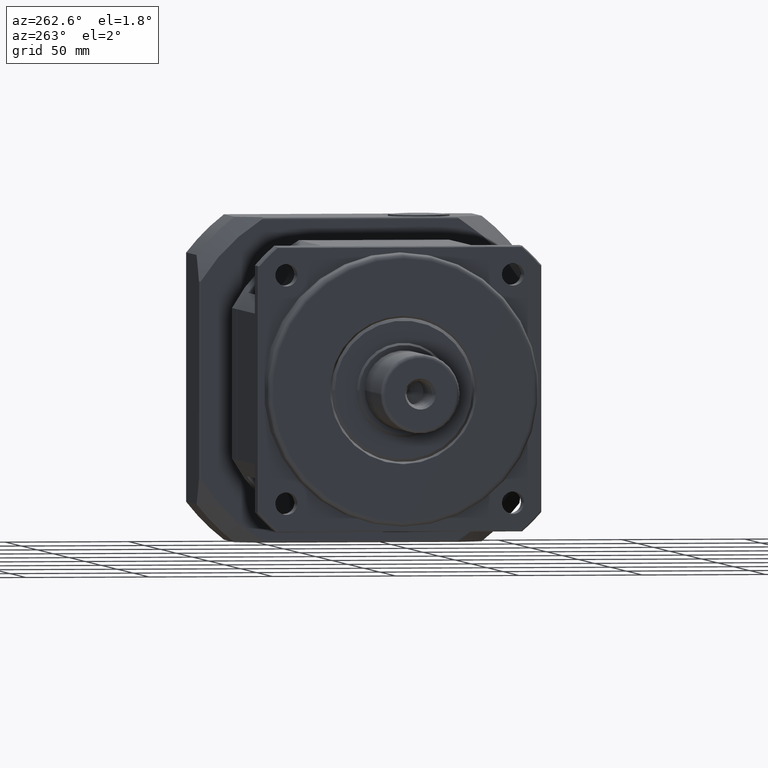
[diagram: clean part render]
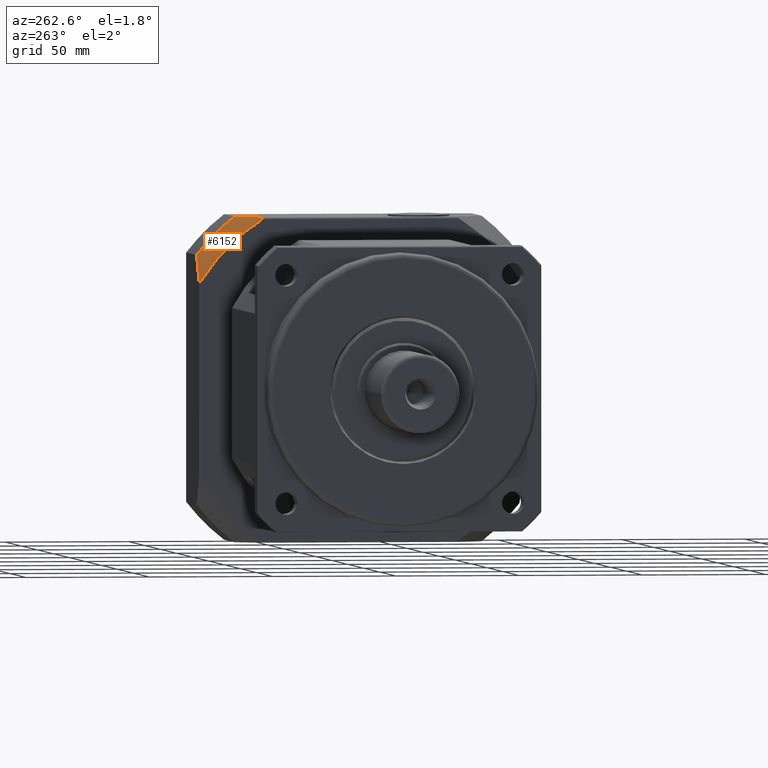
[diagram: same view with one face highlighted and labeled with its STEP entity id]
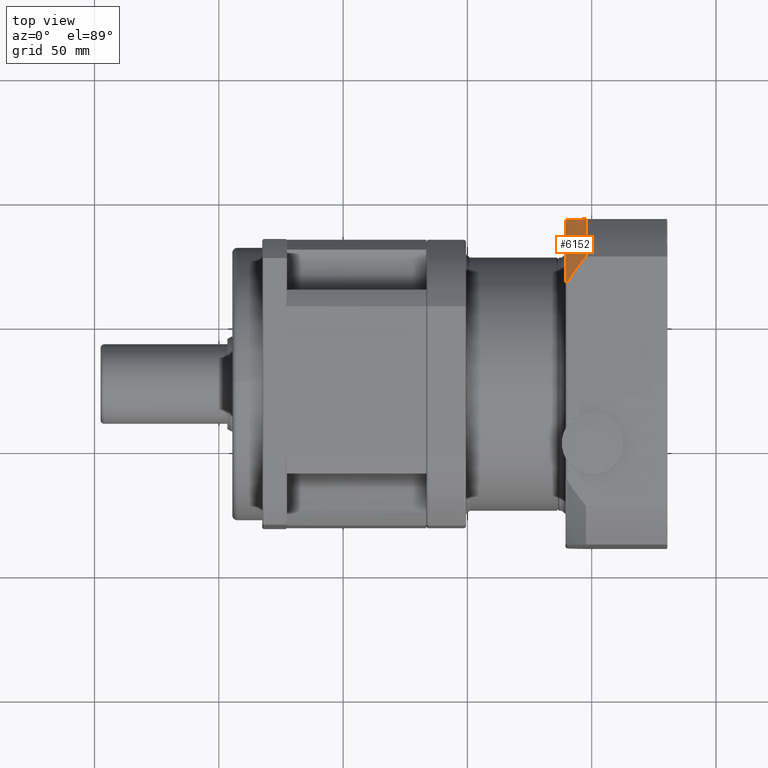
[diagram: same view with one face highlighted and labeled with its STEP entity id]
A machine part, auxiliary view. The second image highlights one B-rep face of the part: STEP entity #6152.
A second angle (top view) of the same face is appended — the face is thin or edge-on in the first view.
In plain terms, the highlighted spherical surface has radius 101 mm.
Its self-contained STEP definition (entity closure, byte-faithful):
#100=B_SPLINE_CURVE_WITH_KNOTS('',3,(#9441,#9442,#9443,#9444,#9445,#9446,
#9447,#9448,#9449,#9450,#9451,#9452,#9453,#9454,#9455,#9456,#9457,#9458,
#9459),.UNSPECIFIED.,.F.,.F.,(4,2,2,2,3,2,2,2,4),(-0.10375974351428,-0.0743978195697474,
-0.027339398487412,-0.013669699243706,0.,0.0135991600600372,0.0271983201200744,
0.0734340801877569,0.102513430987184),.UNSPECIFIED.);
#101=B_SPLINE_CURVE_WITH_KNOTS('',3,(#9464,#9465,#9466,#9467,#9468,#9469,
#9470,#9471,#9472,#9473,#9474,#9475,#9476,#9477,#9478,#9479,#9480,#9481,
#9482),.UNSPECIFIED.,.F.,.F.,(4,2,2,2,3,2,2,2,4),(-0.102513431323022,-0.0734340801877575,
-0.0271983201200752,-0.0135991600600376,0.,0.0136696992437056,0.0273393984874113,
0.0743978195697469,0.103759743514279),.UNSPECIFIED.);
#151=SPHERICAL_SURFACE('',#6660,101.);
#1350=FACE_OUTER_BOUND('',#1814,.T.);
#1814=EDGE_LOOP('',(#4186,#4187,#4188,#4189,#4190,#4191));
#2424=CIRCLE('',#6636,76.881402172437);
#2441=CIRCLE('',#6661,76.0180899523265);
#2442=CIRCLE('',#6662,82.5);
#2443=CIRCLE('',#6663,76.881402172437);
#2774=VERTEX_POINT('',#9353);
#2775=VERTEX_POINT('',#9355);
#2794=VERTEX_POINT('',#9438);
#2795=VERTEX_POINT('',#9439);
#2796=VERTEX_POINT('',#9460);
#2797=VERTEX_POINT('',#9462);
#3349=EDGE_CURVE('',#2774,#2775,#2424,.T.);
#3369=EDGE_CURVE('',#2794,#2795,#2441,.T.);
#3370=EDGE_CURVE('',#2775,#2794,#100,.T.);
#3371=EDGE_CURVE('',#2796,#2774,#2442,.T.);
#3372=EDGE_CURVE('',#2797,#2796,#2443,.T.);
#3373=EDGE_CURVE('',#2795,#2797,#101,.T.);
#4186=ORIENTED_EDGE('',*,*,#3369,.F.);
#4187=ORIENTED_EDGE('',*,*,#3370,.F.);
#4188=ORIENTED_EDGE('',*,*,#3349,.F.);
#4189=ORIENTED_EDGE('',*,*,#3371,.F.);
#4190=ORIENTED_EDGE('',*,*,#3372,.F.);
#4191=ORIENTED_EDGE('',*,*,#3373,.F.);
#6152=ADVANCED_FACE('',(#1350),#151,.T.);
#6636=AXIS2_PLACEMENT_3D('',#9356,#7497,#7498);
#6660=AXIS2_PLACEMENT_3D('',#9437,#7546,#7547);
#6661=AXIS2_PLACEMENT_3D('',#9440,#7548,#7549);
#6662=AXIS2_PLACEMENT_3D('',#9461,#7550,#7551);
#6663=AXIS2_PLACEMENT_3D('',#9463,#7552,#7553);
#7497=DIRECTION('center_axis',(6.52809391270749E-16,-4.35285819263579E-15,
1.));
#7498=DIRECTION('ref_axis',(-4.72771356570085E-16,1.,4.35285819263579E-15));
#7546=DIRECTION('center_axis',(1.,5.62806127334733E-16,-7.03507659168416E-16));
#7547=DIRECTION('ref_axis',(-4.2210459550105E-16,1.,4.08034442317681E-15));
#7548=DIRECTION('center_axis',(-1.,-4.72771356570088E-16,6.52809391270747E-16));
#7549=DIRECTION('ref_axis',(6.52809391270748E-16,-4.14945855453653E-15,
1.));
#7550=DIRECTION('center_axis',(1.,4.72771356570088E-16,-6.52809391270747E-16));
#7551=DIRECTION('ref_axis',(-6.52809391270748E-16,4.14945855453653E-15,
-1.));
#7552=DIRECTION('center_axis',(-4.72771356570086E-16,1.,4.14945855453653E-15));
#7553=DIRECTION('ref_axis',(-6.52809391270748E-16,4.14945855453653E-15,
-1.));
#9353=CARTESIAN_POINT('',(47.6841212151059,-73.0847809504535,-39.4535040947998));
#9355=CARTESIAN_POINT('',(40.4486043931108,-82.9890913506506,-39.4535040947999));
#9356=CARTESIAN_POINT('Origin',(105.948604393111,-123.244525766391,-39.4535040948001));
#9437=CARTESIAN_POINT('Origin',(105.948604393111,-123.244525766391,-104.9535040948));
#9438=CARTESIAN_POINT('',(39.4486043931108,-83.0139403866084,-40.4535040947999));
#9439=CARTESIAN_POINT('',(39.4486043931107,-58.7445257663912,-64.7229187150169));
#9440=CARTESIAN_POINT('Origin',(39.4486043931107,-123.244525766391,-104.9535040948));
#9441=CARTESIAN_POINT('Ctrl Pts',(40.4486043931108,-82.9890913506506,-39.4535040947999));
#9442=CARTESIAN_POINT('Ctrl Pts',(40.3956197490531,-83.0753031686609,-39.4535040947999));
#9443=CARTESIAN_POINT('Ctrl Pts',(40.3406442376306,-83.1584069770653,-39.4576399216727));
#9444=CARTESIAN_POINT('Ctrl Pts',(40.1909554386069,-83.3629848902456,-39.4827556125922));
#9445=CARTESIAN_POINT('Ctrl Pts',(40.0707402067783,-83.5034213681869,-39.5182212807239));
#9446=CARTESIAN_POINT('Ctrl Pts',(39.9220702337655,-83.6119311216905,-39.6024803471692));
#9447=CARTESIAN_POINT('Ctrl Pts',(39.8846454103928,-83.6348681339161,-39.6263982894027));
#9448=CARTESIAN_POINT('Ctrl Pts',(39.8104648843124,-83.6667045361288,-39.6821859211808));
#9449=CARTESIAN_POINT('Ctrl Pts',(39.7737122584757,-83.6753879586573,-39.7141826670619));
#9450=CARTESIAN_POINT('Ctrl Pts',(39.7414976119242,-83.6762021110796,-39.7463973136133));
#9451=CARTESIAN_POINT('Ctrl Pts',(39.7094492012811,-83.6770120622649,-39.7784457242565));
#9452=CARTESIAN_POINT('Ctrl Pts',(39.6774039921931,-83.6701316397046,-39.8152073297301));
#9453=CARTESIAN_POINT('Ctrl Pts',(39.6213706566127,-83.6414462647188,-39.889715876042));
#9454=CARTESIAN_POINT('Ctrl Pts',(39.597264431581,-83.6198527916697,-39.9274552234965));
#9455=CARTESIAN_POINT('Ctrl Pts',(39.5131808066195,-83.5168808677793,-40.0761391943884));
#9456=CARTESIAN_POINT('Ctrl Pts',(39.4778394390626,-83.3805876861197,-40.1960520148744));
#9457=CARTESIAN_POINT('Ctrl Pts',(39.4527206737409,-83.1805097459326,-40.3455985077585));
#9458=CARTESIAN_POINT('Ctrl Pts',(39.4486043931108,-83.0987794625305,-40.4005874174754));
#9459=CARTESIAN_POINT('Ctrl Pts',(39.4486043931108,-83.0139403866084,-40.4535040947999));
#9460=CARTESIAN_POINT('',(47.6841212151059,-57.7445257663912,-54.793759278862));
#9461=CARTESIAN_POINT('Origin',(47.6841212151059,-123.244525766391,-104.9535040948));
#9462=CARTESIAN_POINT('',(40.4486043931107,-57.7445257663912,-64.6980696790591));
#9463=CARTESIAN_POINT('Origin',(105.948604393111,-57.744525766391,-104.9535040948));
#9464=CARTESIAN_POINT('Ctrl Pts',(39.4486043931107,-58.7445257663911,-64.7229187150169));
#9465=CARTESIAN_POINT('Ctrl Pts',(39.4486043931107,-58.6916090893802,-64.8077577904364));
#9466=CARTESIAN_POINT('Ctrl Pts',(39.4527206736288,-58.6366201800166,-64.8894880734489));
#9467=CARTESIAN_POINT('Ctrl Pts',(39.4778394390626,-58.4870736864658,-65.0895660145282));
#9468=CARTESIAN_POINT('Ctrl Pts',(39.5131808066194,-58.3671608659797,-65.2258591961877));
#9469=CARTESIAN_POINT('Ctrl Pts',(39.5972644315809,-58.2184768950878,-65.3288311200781));
#9470=CARTESIAN_POINT('Ctrl Pts',(39.6213706566126,-58.1807375476333,-65.3504245931272));
#9471=CARTESIAN_POINT('Ctrl Pts',(39.6774039921931,-58.1062290013214,-65.3791099681131));
#9472=CARTESIAN_POINT('Ctrl Pts',(39.709449201281,-58.0694673958478,-65.3859903906733));
#9473=CARTESIAN_POINT('Ctrl Pts',(39.7414976119242,-58.0374189852046,-65.3851804394881));
#9474=CARTESIAN_POINT('Ctrl Pts',(39.7737122584757,-58.0052043386532,-65.3843662870657));
#9475=CARTESIAN_POINT('Ctrl Pts',(39.8104648843124,-57.9732075927721,-65.3756828645373));
#9476=CARTESIAN_POINT('Ctrl Pts',(39.8846454103928,-57.9174199609939,-65.3438464623246));
#9477=CARTESIAN_POINT('Ctrl Pts',(39.9220702337655,-57.8935020187605,-65.320909450099));
#9478=CARTESIAN_POINT('Ctrl Pts',(40.0707402067783,-57.8092429523152,-65.2123996965954));
#9479=CARTESIAN_POINT('Ctrl Pts',(40.1909554386069,-57.7737772841835,-65.0719632186541));
#9480=CARTESIAN_POINT('Ctrl Pts',(40.3406442376306,-57.748661593264,-64.8673853054738));
#9481=CARTESIAN_POINT('Ctrl Pts',(40.3956197490531,-57.7445257663912,-64.7842814970694));
#9482=CARTESIAN_POINT('Ctrl Pts',(40.4486043931107,-57.7445257663912,-64.6980696790591));